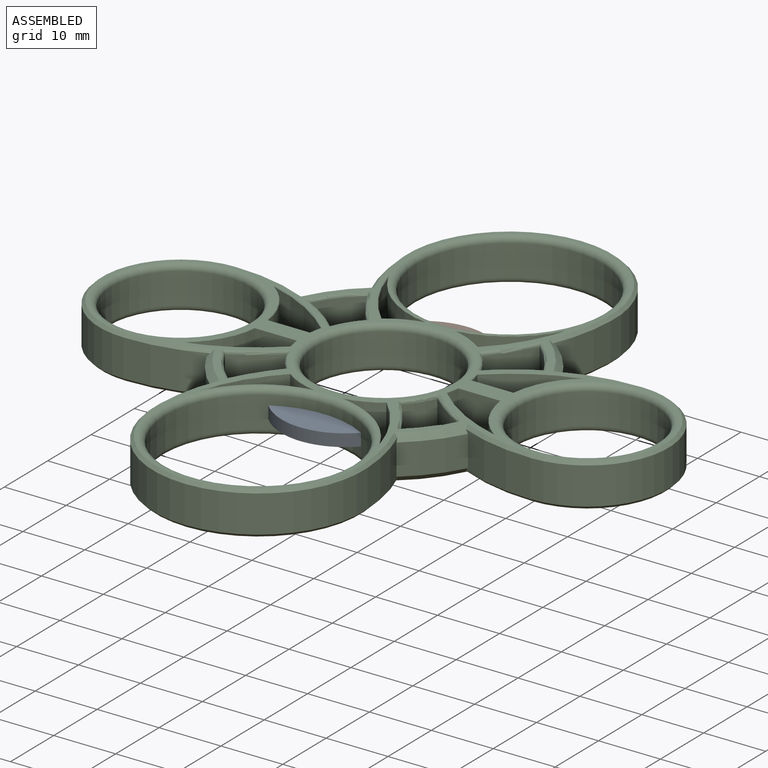
[diagram: assembled view]
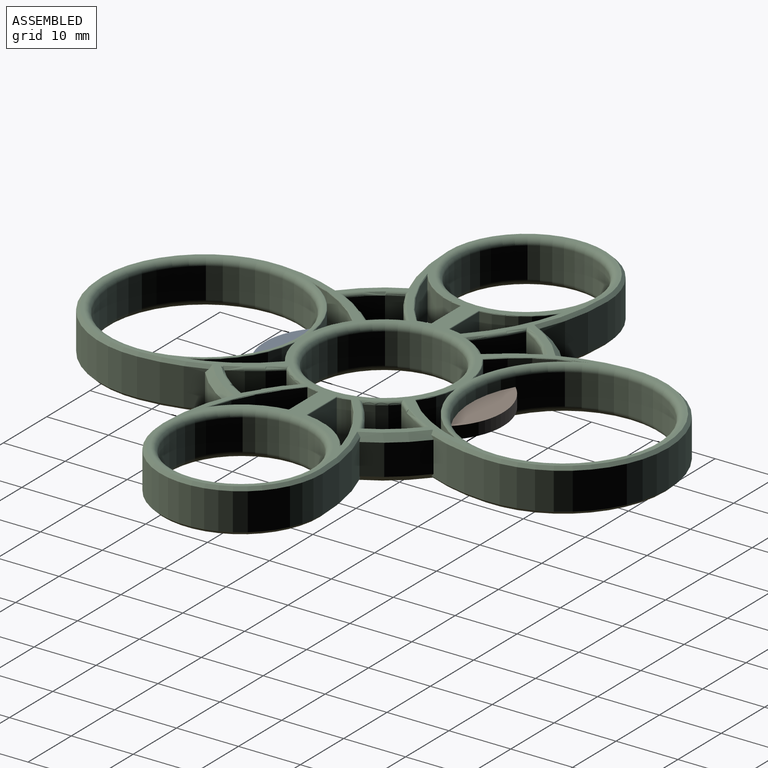
[diagram: assembled view, second angle]
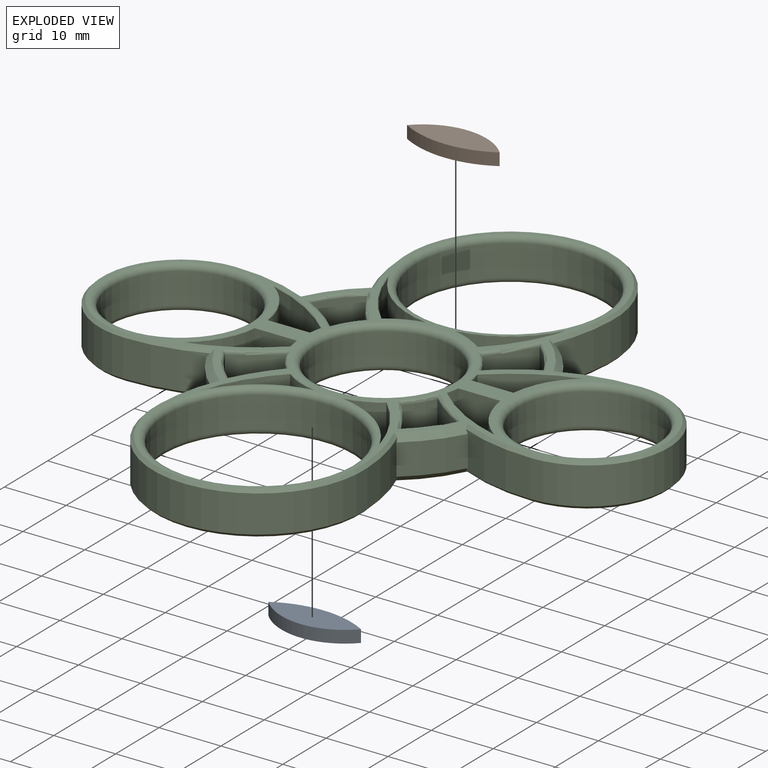
[diagram: exploded view]
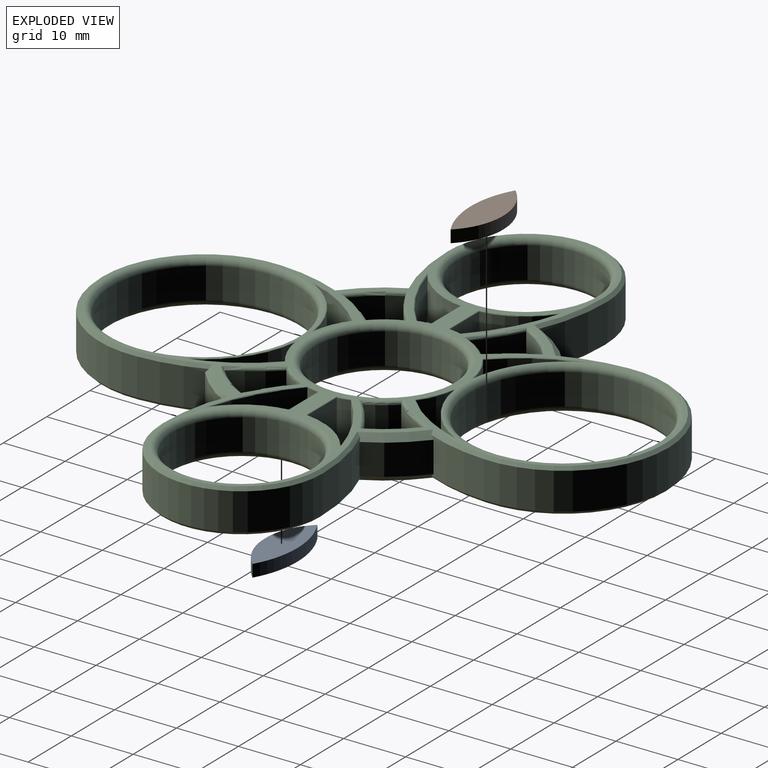
[diagram: exploded view, second angle]
ASSEMBLY  parts=3 mates=2
PART A: 4 faces, bbox 15x5.3x2 mm
  f0: cylinder r=15mm len=14.97mm, axis (0,0,-1), area 31.4mm2, adj f1,f2,f3
  f1: cylinder r=10.25mm len=14.97mm, axis (0,0,-1), area 33.6mm2, adj f0,f2,f3
  f2: plane 14.97x5.25mm, normal (0,0,1), area 53.9mm2, adj f0,f1
  f3: plane 14.97x5.25mm, normal (0,0,-1), area 53.9mm2, adj f0,f1
PART B: same geometry as A
PART C: 197 faces, bbox 92.8x94.2x7 mm
  f0: plane 91x91mm, normal (0,0,1), area 436mm2, adj f72,f73,f74,f75,f76,f78,f80,f81
  f1: plane 91x91mm, normal (0,0,-1), area 436mm2, adj f67,f68,f69,f70,f71,f77,f79,f82
  f2: cylinder r=21.25mm len=6.3mm, axis (0,0,-1), area 48.4mm2, adj f3,f31,f95,f111
  f3: cylinder r=30mm len=6.74mm, axis (0,0,-1), area 49.7mm2, adj f2,f4,f93,f109
  f4: cylinder r=13.12mm len=6mm, axis (0,0,-1), area 30.9mm2, adj f3,f31,f94,f110
  f5: cylinder r=21.25mm len=6.3mm, axis (0,0,-1), area 48.4mm2, adj f6,f32,f91,f107
  f6: cylinder r=30mm len=6.8mm, axis (0,0,-1), area 49.4mm2, adj f5,f7,f89,f105
  f7: cylinder r=13.12mm len=6mm, axis (0,0,-1), area 30.9mm2, adj f6,f32,f90,f106
  f8: cylinder r=30mm len=6.8mm, axis (0,0,-1), area 49.4mm2, adj f9,f33,f88,f104
  f9: cylinder r=21.25mm len=6.3mm, axis (0,0,-1), area 48.4mm2, adj f8,f10,f87,f103
  f10: cylinder r=30mm len=6.74mm, axis (0,0,-1), area 49.7mm2, adj f9,f33,f85,f101
  f11: cylinder r=21.25mm len=6.3mm, axis (0,0,-1), area 48.4mm2, adj f12,f34,f97,f113
  f12: cylinder r=30mm len=6.8mm, axis (0,0,-1), area 49.4mm2, adj f11,f13,f99,f115
  f13: cylinder r=13.12mm len=6mm, axis (0,0,-1), area 30.9mm2, adj f12,f34,f100,f116
  f14: cylinder r=17mm len=34mm, axis (0,0,-1), area 332.1mm2, adj f15,f37,f118,f130
  f15: cylinder r=30mm len=10.08mm, axis (0,0,-1), area 59.3mm2, adj f14,f16,f83,f84,f119,f131
  f16: cylinder r=23.73mm len=7.61mm, axis (0,0,-1), area 49.4mm2, adj f15,f17,f83,f84
  f17: cylinder r=30mm len=12.22mm, axis (0,0,-1), area 72.6mm2, adj f16,f18,f83,f84,f122,f140
  f18: cylinder r=13.12mm len=26.25mm, axis (0,0,-1), area 247.4mm2, adj f17,f19,f121,f139
  f19: cylinder r=30mm len=12.22mm, axis (0,0,-1), area 72.6mm2, adj f18,f20,f81,f82,f120,f138
  f20: cylinder r=23.73mm len=7.61mm, axis (0,0,-1), area 49.4mm2, adj f19,f21,f81,f82
  f21: cylinder r=30mm len=10.08mm, axis (0,0,-1), area 59.3mm2, adj f20,f22,f81,f82,f125,f135
  f22: cylinder r=17mm len=34mm, axis (0,0,-1), area 332.1mm2, adj f21,f23,f124,f136
  f23: cylinder r=30mm len=10.06mm, axis (0,0,-1), area 59.2mm2, adj f22,f24,f79,f80,f123,f137
  f24: cylinder r=23.75mm len=7.62mm, axis (0,0,-1), area 49.4mm2, adj f23,f25,f79,f80
  f25: cylinder r=30mm len=12.2mm, axis (0,0,-1), area 72.5mm2, adj f24,f26,f79,f80,f128,f132
  f26: cylinder r=13.12mm len=26.25mm, axis (0,0,-1), area 247.4mm2, adj f25,f27,f127,f134
  f27: cylinder r=30mm len=12.2mm, axis (0,0,-1), area 72.5mm2, adj f26,f28,f77,f78,f126,f133
  f28: cylinder r=23.75mm len=7.62mm, axis (0,0,-1), area 49.4mm2, adj f27,f37,f77,f78
  f29: cylinder r=15mm len=30mm, axis (0,0,-1), area 471.2mm2, adj f67,f72
  f30: cylinder r=15mm len=30mm, axis (0,0,-1), area 471.2mm2, adj f68,f73
  f31: cylinder r=30mm len=6.8mm, axis (0,0,-1), area 49.4mm2, adj f2,f4,f96,f112
  f32: cylinder r=30mm len=6.74mm, axis (0,0,-1), area 49.7mm2, adj f5,f7,f92,f108
  f33: cylinder r=13.12mm len=6mm, axis (0,0,-1), area 30.9mm2, adj f8,f10,f86,f102
  f34: cylinder r=30mm len=6.74mm, axis (0,0,-1), area 49.7mm2, adj f11,f13,f98,f114
  f35: cylinder r=11.12mm len=22.25mm, axis (0,0,-1), area 349.5mm2, adj f69,f74
  f36: cylinder r=11.12mm len=22.25mm, axis (0,0,-1), area 349.5mm2, adj f70,f75
  f37: cylinder r=30mm len=10.06mm, axis (0,0,-1), area 59.2mm2, adj f14,f28,f77,f78,f117,f129
  f38: cylinder r=11.12mm len=22.25mm, axis (0,0,-1), area 349.5mm2, adj f71,f76
  f39: cylinder r=30mm len=12.53mm, axis (0,0,1), area 98.2mm2, adj f40,f41,f165,f196
  f40: cylinder r=13.12mm len=6.75mm, axis (0,0,1), area 13.9mm2, adj f39,f42,f167,f195
  f41: cylinder r=13.12mm len=9.13mm, axis (0,0,1), area 73.4mm2, adj f39,f42,f166,f194
  f42: plane 6.8x6.75mm, normal (0,1,0), area 45.9mm2, adj f40,f41,f168,f193
  f43: cylinder r=30mm len=12.53mm, axis (0,0,1), area 98.2mm2, adj f44,f45,f153,f184
  f44: cylinder r=13.12mm len=6.75mm, axis (0,0,1), area 13.9mm2, adj f43,f46,f155,f183
  f45: cylinder r=13.12mm len=9.13mm, axis (0,0,1), area 73.4mm2, adj f43,f46,f154,f182
  f46: plane 6.8x6.75mm, normal (0,-1,0), area 45.9mm2, adj f44,f45,f156,f181
  f47: cylinder r=13.12mm len=6.75mm, axis (0,0,1), area 13.9mm2, adj f48,f49,f157,f188
  f48: cylinder r=30mm len=12.53mm, axis (0,0,1), area 98.2mm2, adj f47,f50,f159,f187
  f49: plane 6.8x6.75mm, normal (0,1,0), area 45.9mm2, adj f47,f50,f158,f186
  f50: cylinder r=13.12mm len=9.13mm, axis (0,0,1), area 73.4mm2, adj f48,f49,f160,f185
  f51: cylinder r=30mm len=12.53mm, axis (0,0,1), area 98.2mm2, adj f52,f53,f163,f190
  f52: cylinder r=13.12mm len=6.75mm, axis (0,0,1), area 13.9mm2, adj f51,f54,f161,f189
  f53: cylinder r=13.12mm len=9.13mm, axis (0,0,1), area 73.4mm2, adj f51,f54,f164,f192
  f54: plane 6.8x6.75mm, normal (0,-1,0), area 45.9mm2, adj f52,f53,f162,f191
  f55: cylinder r=16.25mm len=12.15mm, axis (0,0,-1), area 104.8mm2, adj f56,f57,f150,f180
  f56: cylinder r=13.12mm len=6.75mm, axis (0,0,-1), area 40.4mm2, adj f55,f57,f152,f178
  f57: cylinder r=25mm len=11.04mm, axis (0,0,-1), area 88.1mm2, adj f55,f56,f151,f179
  f58: cylinder r=25mm len=11.04mm, axis (0,0,-1), area 88.1mm2, adj f59,f60,f143,f170
  f59: cylinder r=13.12mm len=6.75mm, axis (0,0,-1), area 40.4mm2, adj f58,f60,f141,f169
  f60: cylinder r=16.25mm len=12.15mm, axis (0,0,-1), area 104.8mm2, adj f58,f59,f142,f171
  f61: cylinder r=25mm len=11.04mm, axis (0,0,-1), area 88.1mm2, adj f62,f63,f144,f174
  f62: cylinder r=13.12mm len=6.75mm, axis (0,0,-1), area 40.4mm2, adj f61,f63,f146,f173
  f63: cylinder r=16.25mm len=12.15mm, axis (0,0,-1), area 104.8mm2, adj f61,f62,f145,f172
  f64: cylinder r=25mm len=11.04mm, axis (0,0,-1), area 88.1mm2, adj f65,f66,f147,f177
  f65: cylinder r=13.12mm len=6.75mm, axis (0,0,-1), area 40.4mm2, adj f64,f66,f149,f176
  f66: cylinder r=16.25mm len=12.15mm, axis (0,0,-1), area 104.8mm2, adj f64,f65,f148,f175
  f67: torus R=16mm, axis (0,0,1), area 151.6mm2, adj f1,f29
  f68: torus R=16mm, axis (0,0,1), area 151.6mm2, adj f1,f30
  f69: torus R=12.12mm, axis (0,0,1), area 113.4mm2, adj f1,f35
  f70: torus R=12.12mm, axis (0,0,1), area 113.4mm2, adj f1,f36
  f71: torus R=12.12mm, axis (0,0,1), area 113.4mm2, adj f1,f38
  f72: torus R=16mm, axis (0,0,1), area 151.6mm2, adj f0,f29
  f73: torus R=16mm, axis (0,0,1), area 151.6mm2, adj f0,f30
  f74: torus R=12.12mm, axis (0,0,1), area 113.4mm2, adj f0,f35
  f75: torus R=12.12mm, axis (0,0,1), area 113.4mm2, adj f0,f36
  f76: torus R=12.12mm, axis (0,0,1), area 113.4mm2, adj f0,f38
  f77: cone r=23.75mm half-angle=45deg, axis (0,0,1), area 13.8mm2, adj f1,f27,f28,f37,f117,f126
  f78: cone r=22.75mm half-angle=45deg, axis (0,0,-1), area 13.8mm2, adj f0,f27,f28,f37,f129,f133
  f79: cone r=23.75mm half-angle=45deg, axis (0,0,1), area 13.8mm2, adj f1,f23,f24,f25,f123,f128
  f80: cone r=22.75mm half-angle=45deg, axis (0,0,-1), area 13.8mm2, adj f0,f23,f24,f25,f132,f137
  f81: cone r=22.73mm half-angle=45deg, axis (0,0,-1), area 13.8mm2, adj f0,f19,f20,f21,f135,f138
  f82: cone r=23.73mm half-angle=45deg, axis (0,0,1), area 13.8mm2, adj f1,f19,f20,f21,f120,f125
  f83: cone r=22.73mm half-angle=45deg, axis (0,0,-1), area 13.8mm2, adj f0,f15,f16,f17,f131,f140
  f84: cone r=23.73mm half-angle=45deg, axis (0,0,1), area 13.8mm2, adj f1,f15,f16,f17,f119,f122
  f85: torus R=29.5mm, axis (0,0,1), area 6.9mm2, adj f1,f10,f86,f87
  f86: torus R=12.62mm, axis (0,0,1), area 4.4mm2, adj f1,f33,f85,f88
  f87: torus R=21.75mm, axis (0,0,1), area 6.8mm2, adj f1,f9,f85,f88
  f88: torus R=29.5mm, axis (0,0,1), area 6.9mm2, adj f1,f8,f86,f87
  f89: torus R=29.5mm, axis (0,0,1), area 6.9mm2, adj f1,f6,f90,f91
  f90: torus R=12.62mm, axis (0,0,1), area 4.4mm2, adj f1,f7,f89,f92
  f91: torus R=21.75mm, axis (0,0,1), area 6.8mm2, adj f1,f5,f89,f92
  f92: torus R=29.5mm, axis (0,0,1), area 6.9mm2, adj f1,f32,f90,f91
  f93: torus R=29.5mm, axis (0,0,1), area 6.9mm2, adj f1,f3,f94,f95
  f94: torus R=12.62mm, axis (0,0,1), area 4.4mm2, adj f1,f4,f93,f96
  f95: torus R=21.75mm, axis (0,0,1), area 6.8mm2, adj f1,f2,f93,f96
  f96: torus R=29.5mm, axis (0,0,1), area 6.9mm2, adj f1,f31,f94,f95
  f97: torus R=21.75mm, axis (0,0,1), area 6.8mm2, adj f1,f11,f98,f99
  f98: torus R=29.5mm, axis (0,0,1), area 6.9mm2, adj f1,f34,f97,f100
  f99: torus R=29.5mm, axis (0,0,1), area 6.9mm2, adj f1,f12,f97,f100
  f100: torus R=12.62mm, axis (0,0,1), area 4.4mm2, adj f1,f13,f98,f99
  f101: torus R=29.5mm, axis (0,0,1), area 6.9mm2, adj f0,f10,f102,f103
  f102: torus R=12.62mm, axis (0,0,1), area 4.4mm2, adj f0,f33,f101,f104
  f103: torus R=21.75mm, axis (0,0,1), area 6.8mm2, adj f0,f9,f101,f104
  f104: torus R=29.5mm, axis (0,0,1), area 6.9mm2, adj f0,f8,f102,f103
  f105: torus R=29.5mm, axis (0,0,1), area 6.9mm2, adj f0,f6,f106,f107
  f106: torus R=12.62mm, axis (0,0,1), area 4.4mm2, adj f0,f7,f105,f108
  f107: torus R=21.75mm, axis (0,0,1), area 6.8mm2, adj f0,f5,f105,f108
  f108: torus R=29.5mm, axis (0,0,1), area 6.9mm2, adj f0,f32,f106,f107
  f109: torus R=29.5mm, axis (0,0,1), area 6.9mm2, adj f0,f3,f110,f111
  f110: torus R=12.62mm, axis (0,0,1), area 4.4mm2, adj f0,f4,f109,f112
  f111: torus R=21.75mm, axis (0,0,1), area 6.8mm2, adj f0,f2,f109,f112
  f112: torus R=29.5mm, axis (0,0,1), area 6.9mm2, adj f0,f31,f110,f111
  f113: torus R=21.75mm, axis (0,0,1), area 6.8mm2, adj f0,f11,f114,f115
  f114: torus R=29.5mm, axis (0,0,1), area 6.9mm2, adj f0,f34,f113,f116
  f115: torus R=29.5mm, axis (0,0,1), area 6.9mm2, adj f0,f12,f113,f116
  f116: torus R=12.62mm, axis (0,0,1), area 4.4mm2, adj f0,f13,f114,f115
  f117: cone r=30mm half-angle=45deg, axis (0,0,1), area 7.4mm2, adj f1,f37,f77,f118
  f118: cone r=17mm half-angle=45deg, axis (0,0,1), area 38.6mm2, adj f1,f14,f117,f119
  f119: cone r=30mm half-angle=45deg, axis (0,0,1), area 7.4mm2, adj f1,f15,f84,f118
  f120: cone r=30mm half-angle=45deg, axis (0,0,1), area 9mm2, adj f1,f19,f82,f121
  f121: cone r=13.12mm half-angle=45deg, axis (0,0,1), area 28.6mm2, adj f1,f18,f120,f122
  f122: cone r=30mm half-angle=45deg, axis (0,0,1), area 9mm2, adj f1,f17,f84,f121
  f123: cone r=30mm half-angle=45deg, axis (0,0,1), area 7.4mm2, adj f1,f23,f79,f124
  f124: cone r=17mm half-angle=45deg, axis (0,0,1), area 38.6mm2, adj f1,f22,f123,f125
  f125: cone r=30mm half-angle=45deg, axis (0,0,1), area 7.4mm2, adj f1,f21,f82,f124
  f126: cone r=30mm half-angle=45deg, axis (0,0,1), area 9mm2, adj f1,f27,f77,f127
  f127: cone r=13.12mm half-angle=45deg, axis (0,0,1), area 28.6mm2, adj f1,f26,f126,f128
  f128: cone r=30mm half-angle=45deg, axis (0,0,1), area 9mm2, adj f1,f25,f79,f127
  f129: cone r=29.5mm half-angle=45deg, axis (0,0,-1), area 7.4mm2, adj f0,f37,f78,f130
  f130: cone r=16.5mm half-angle=45deg, axis (0,0,-1), area 38.6mm2, adj f0,f14,f129,f131
  f131: cone r=29.5mm half-angle=45deg, axis (0,0,-1), area 7.4mm2, adj f0,f15,f83,f130
  f132: cone r=29.5mm half-angle=45deg, axis (0,0,-1), area 9mm2, adj f0,f25,f80,f134
  f133: cone r=29.5mm half-angle=45deg, axis (0,0,-1), area 9mm2, adj f0,f27,f78,f134
  f134: cone r=12.62mm half-angle=45deg, axis (0,0,-1), area 28.6mm2, adj f0,f26,f132,f133
  f135: cone r=29.5mm half-angle=45deg, axis (0,0,-1), area 7.4mm2, adj f0,f21,f81,f136
  f136: cone r=16.5mm half-angle=45deg, axis (0,0,-1), area 38.6mm2, adj f0,f22,f135,f137
  f137: cone r=29.5mm half-angle=45deg, axis (0,0,-1), area 7.4mm2, adj f0,f23,f80,f136
  f138: cone r=29.5mm half-angle=45deg, axis (0,0,-1), area 9mm2, adj f0,f19,f81,f139
  f139: cone r=12.62mm half-angle=45deg, axis (0,0,-1), area 28.6mm2, adj f0,f18,f138,f140
  f140: cone r=29.5mm half-angle=45deg, axis (0,0,-1), area 9mm2, adj f0,f17,f83,f139
  f141: torus R=13mm, axis (0,0,1), area 1.3mm2, adj f1,f59,f142,f143
  f142: torus R=16.12mm, axis (0,0,1), area 3.3mm2, adj f1,f60,f141,f143
  f143: torus R=25.12mm, axis (0,0,1), area 2.7mm2, adj f1,f58,f141,f142
  f144: torus R=25.12mm, axis (0,0,1), area 2.7mm2, adj f1,f61,f145,f146
  f145: torus R=16.12mm, axis (0,0,1), area 3.3mm2, adj f1,f63,f144,f146
  f146: torus R=13mm, axis (0,0,1), area 1.3mm2, adj f1,f62,f144,f145
  f147: torus R=25.12mm, axis (0,0,1), area 2.7mm2, adj f1,f64,f148,f149
  f148: torus R=16.12mm, axis (0,0,1), area 3.3mm2, adj f1,f66,f147,f149
  f149: torus R=13mm, axis (0,0,1), area 1.3mm2, adj f1,f65,f147,f148
  f150: torus R=16.12mm, axis (0,0,1), area 3.3mm2, adj f1,f55,f151,f152
  f151: torus R=25.12mm, axis (0,0,1), area 2.7mm2, adj f1,f57,f150,f152
  f152: torus R=13mm, axis (0,0,1), area 1.3mm2, adj f1,f56,f150,f151
  f153: torus R=30.12mm, axis (0,0,1), area 2.9mm2, adj f1,f43,f154,f155
  f154: torus R=13mm, axis (0,0,1), area 2.2mm2, adj f1,f45,f153,f156
  f155: torus R=13mm, axis (0,0,1), area 0.4mm2, adj f1,f44,f153,f156
  f156: cylinder r=0.12mm len=7.02mm, axis (1,0,0), area 1.4mm2, adj f1,f46,f154,f155
  f157: torus R=13mm, axis (0,0,1), area 0.4mm2, adj f1,f47,f158,f159
  f158: cylinder r=0.12mm len=7.02mm, axis (-1,0,0), area 1.4mm2, adj f1,f49,f157,f160
  f159: torus R=30.12mm, axis (0,0,1), area 2.9mm2, adj f1,f48,f157,f160
  f160: torus R=13mm, axis (0,0,1), area 2.2mm2, adj f1,f50,f158,f159
  f161: torus R=13mm, axis (0,0,1), area 0.4mm2, adj f1,f52,f162,f163
  f162: cylinder r=0.12mm len=7.02mm, axis (1,0,0), area 1.4mm2, adj f1,f54,f161,f164
  f163: torus R=30.12mm, axis (0,0,1), area 2.9mm2, adj f1,f51,f161,f164
  f164: torus R=13mm, axis (0,0,1), area 2.2mm2, adj f1,f53,f162,f163
  f165: torus R=30.12mm, axis (0,0,1), area 2.9mm2, adj f1,f39,f166,f167
  f166: torus R=13mm, axis (0,0,1), area 2.2mm2, adj f1,f41,f165,f168
  f167: torus R=13mm, axis (0,0,1), area 0.4mm2, adj f1,f40,f165,f168
  f168: cylinder r=0.12mm len=7.02mm, axis (-1,0,0), area 1.4mm2, adj f1,f42,f166,f167
  f169: torus R=13mm, axis (0,0,1), area 1.3mm2, adj f0,f59,f170,f171
  f170: torus R=25.12mm, axis (0,0,1), area 2.7mm2, adj f0,f58,f169,f171
  f171: torus R=16.12mm, axis (0,0,1), area 3.3mm2, adj f0,f60,f169,f170
  f172: torus R=16.12mm, axis (0,0,1), area 3.3mm2, adj f0,f63,f173,f174
  f173: torus R=13mm, axis (0,0,1), area 1.3mm2, adj f0,f62,f172,f174
  f174: torus R=25.12mm, axis (0,0,1), area 2.7mm2, adj f0,f61,f172,f173
  f175: torus R=16.12mm, axis (0,0,1), area 3.3mm2, adj f0,f66,f176,f177
  f176: torus R=13mm, axis (0,0,1), area 1.3mm2, adj f0,f65,f175,f177
  f177: torus R=25.12mm, axis (0,0,1), area 2.7mm2, adj f0,f64,f175,f176
  f178: torus R=13mm, axis (0,0,1), area 1.3mm2, adj f0,f56,f179,f180
  f179: torus R=25.12mm, axis (0,0,1), area 2.7mm2, adj f0,f57,f178,f180
  f180: torus R=16.12mm, axis (0,0,1), area 3.3mm2, adj f0,f55,f178,f179
  f181: cylinder r=0.12mm len=7.02mm, axis (1,0,0), area 1.4mm2, adj f0,f46,f182,f183
  f182: torus R=13mm, axis (0,0,1), area 2.2mm2, adj f0,f45,f181,f184
  f183: torus R=13mm, axis (0,0,1), area 0.4mm2, adj f0,f44,f181,f184
  f184: torus R=30.12mm, axis (0,0,1), area 2.9mm2, adj f0,f43,f182,f183
  f185: torus R=13mm, axis (0,0,1), area 2.2mm2, adj f0,f50,f186,f187
  f186: cylinder r=0.12mm len=7.02mm, axis (-1,0,0), area 1.4mm2, adj f0,f49,f185,f188
  f187: torus R=30.12mm, axis (0,0,1), area 2.9mm2, adj f0,f48,f185,f188
  f188: torus R=13mm, axis (0,0,1), area 0.4mm2, adj f0,f47,f186,f187
  f189: torus R=13mm, axis (0,0,1), area 0.4mm2, adj f0,f52,f190,f191
  f190: torus R=30.12mm, axis (0,0,1), area 2.9mm2, adj f0,f51,f189,f192
  f191: cylinder r=0.12mm len=7.02mm, axis (1,0,0), area 1.4mm2, adj f0,f54,f189,f192
  f192: torus R=13mm, axis (0,0,1), area 2.2mm2, adj f0,f53,f190,f191
  f193: cylinder r=0.12mm len=7.02mm, axis (-1,0,0), area 1.4mm2, adj f0,f42,f194,f195
  f194: torus R=13mm, axis (0,0,1), area 2.2mm2, adj f0,f41,f193,f196
  f195: torus R=13mm, axis (0,0,1), area 0.4mm2, adj f0,f40,f193,f196
  f196: torus R=30.12mm, axis (0,0,1), area 2.9mm2, adj f0,f39,f194,f195
PLACE A rot(axis=(0,0,1),180deg) t=(-114.51,-4.93,7.39)mm
PLACE B t=(-2.29,-35.8,7.39)mm
PLACE C t=(-58.4,-20.37,4.89)mm
MATE cylindrical B.f0 <-> C.f14  axis (0,0,1) through (-58.4,8.63,9.39)mm
MATE cylindrical A.f0 <-> C.f22  axis (0,0,1) through (-58.4,-49.37,9.39)mm
